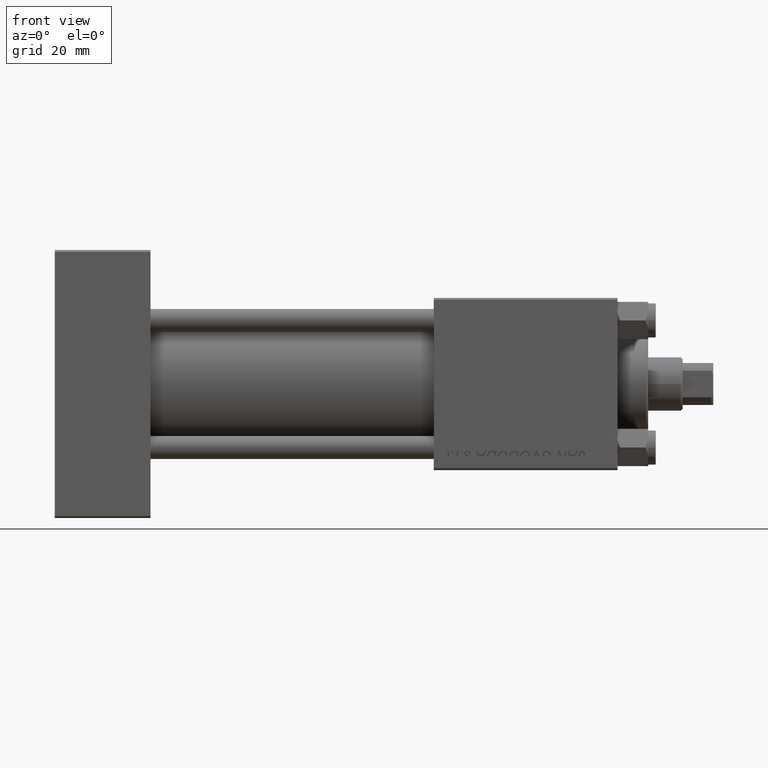
[diagram: clean part render]
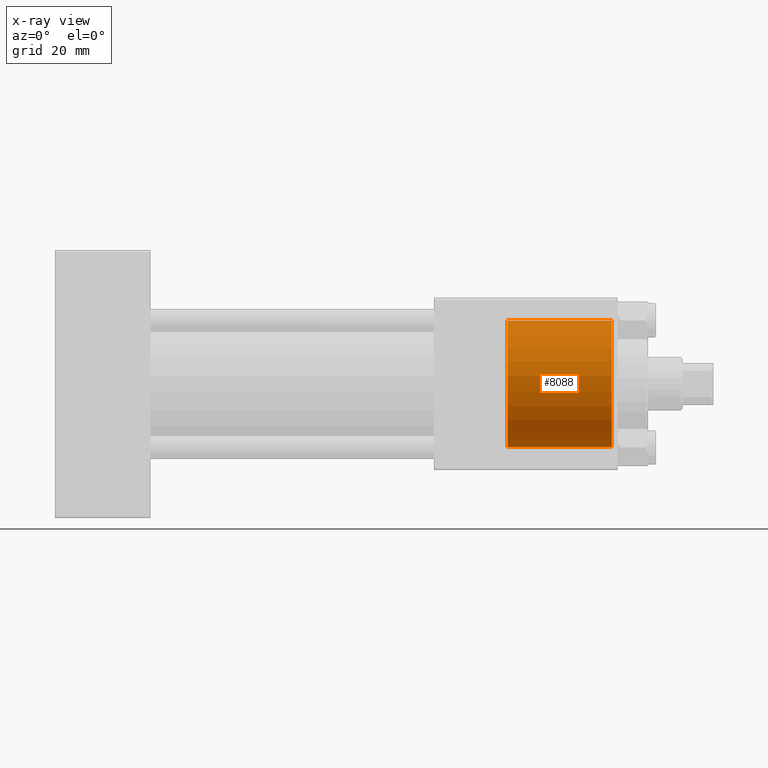
[diagram: x-ray — body ghosted, one internal face saturated and labeled with its STEP entity id]
A machine part, front view, then the same camera in x-ray: the body is ghosted and one INTERNAL B-rep face — a face not visible from any outside direction — is saturated and labeled: STEP entity #8088.
In plain terms, the highlighted cylindrical surface (partial cylindrical patch) has radius 16.5 mm, axis along (1, 0, 0).
Its self-contained STEP definition (entity closure, byte-faithful):
#2099 = CARTESIAN_POINT ( 'NONE',  ( 118.3000000000000114, 0.000000000000000000, -16.50000000000000000 ) ) ;
#2332 = DIRECTION ( 'NONE',  ( 1.000000000000000000, -0.000000000000000000, -0.000000000000000000 ) ) ;
#4001 = ORIENTED_EDGE ( 'NONE', *, *, #10916, .T. ) ;
#4793 = CARTESIAN_POINT ( 'NONE',  ( 145.5000000000000284, 2.020667218593133100E-15, 16.50000000000000000 ) ) ;
#6565 = DIRECTION ( 'NONE',  ( 0.000000000000000000, 0.000000000000000000, -1.000000000000000000 ) ) ;
#7128 = LINE ( 'NONE', #37962, #44204 ) ;
#7195 = CYLINDRICAL_SURFACE ( 'NONE', #49605, 16.50000000000000000 ) ;
#7435 = DIRECTION ( 'NONE',  ( 1.000000000000000000, -0.000000000000000000, -0.000000000000000000 ) ) ;
#8088 = ADVANCED_FACE ( 'NONE', ( #14786 ), #7195, .F. ) ;
#8285 = CIRCLE ( 'NONE', #36541, 16.50000000000000000 ) ;
#9606 = DIRECTION ( 'NONE',  ( 1.000000000000000000, -0.000000000000000000, -0.000000000000000000 ) ) ;
#10916 = EDGE_CURVE ( 'NONE', #20315, #31571, #31096, .T. ) ;
#14786 = FACE_OUTER_BOUND ( 'NONE', #25276, .T. ) ;
#18834 = DIRECTION ( 'NONE',  ( 0.000000000000000000, 0.000000000000000000, -1.000000000000000000 ) ) ;
#20315 = VERTEX_POINT ( 'NONE', #4793 ) ;
#21029 = DIRECTION ( 'NONE',  ( 1.000000000000000000, 0.000000000000000000, 0.000000000000000000 ) ) ;
#24305 = LINE ( 'NONE', #28109, #48745 ) ;
#25276 = EDGE_LOOP ( 'NONE', ( #27539, #34533, #4001, #32006 ) ) ;
#26457 = CARTESIAN_POINT ( 'NONE',  ( 118.3000000000000114, 2.020667218593133100E-15, 16.50000000000000000 ) ) ;
#27539 = ORIENTED_EDGE ( 'NONE', *, *, #30810, .F. ) ;
#28109 = CARTESIAN_POINT ( 'NONE',  ( 118.3000000000000114, 0.000000000000000000, -16.50000000000000000 ) ) ;
#30191 = VERTEX_POINT ( 'NONE', #2099 ) ;
#30810 = EDGE_CURVE ( 'NONE', #36748, #30191, #8285, .T. ) ;
#30958 = CARTESIAN_POINT ( 'NONE',  ( 145.5000000000000284, 0.000000000000000000, -16.50000000000000000 ) ) ;
#31096 = CIRCLE ( 'NONE', #49599, 16.50000000000000000 ) ;
#31571 = VERTEX_POINT ( 'NONE', #30958 ) ;
#32006 = ORIENTED_EDGE ( 'NONE', *, *, #34478, .F. ) ;
#33377 = CARTESIAN_POINT ( 'NONE',  ( 118.3000000000000114, 0.000000000000000000, 0.000000000000000000 ) ) ;
#34478 = EDGE_CURVE ( 'NONE', #30191, #31571, #24305, .T. ) ;
#34533 = ORIENTED_EDGE ( 'NONE', *, *, #44240, .T. ) ;
#36430 = DIRECTION ( 'NONE',  ( 0.000000000000000000, 0.000000000000000000, 1.000000000000000000 ) ) ;
#36541 = AXIS2_PLACEMENT_3D ( 'NONE', #33377, #49501, #6565 ) ;
#36748 = VERTEX_POINT ( 'NONE', #26457 ) ;
#37962 = CARTESIAN_POINT ( 'NONE',  ( 118.3000000000000114, 2.020667218593133100E-15, 16.50000000000000000 ) ) ;
#38544 = CARTESIAN_POINT ( 'NONE',  ( 118.3000000000000114, 0.000000000000000000, 0.000000000000000000 ) ) ;
#40221 = CARTESIAN_POINT ( 'NONE',  ( 145.5000000000000284, 0.000000000000000000, 0.000000000000000000 ) ) ;
#44204 = VECTOR ( 'NONE', #2332, 1000.000000000000000 ) ;
#44240 = EDGE_CURVE ( 'NONE', #36748, #20315, #7128, .T. ) ;
#48745 = VECTOR ( 'NONE', #9606, 1000.000000000000000 ) ;
#49501 = DIRECTION ( 'NONE',  ( 1.000000000000000000, 0.000000000000000000, 0.000000000000000000 ) ) ;
#49599 = AXIS2_PLACEMENT_3D ( 'NONE', #40221, #21029, #36430 ) ;
#49605 = AXIS2_PLACEMENT_3D ( 'NONE', #38544, #7435, #18834 ) ;